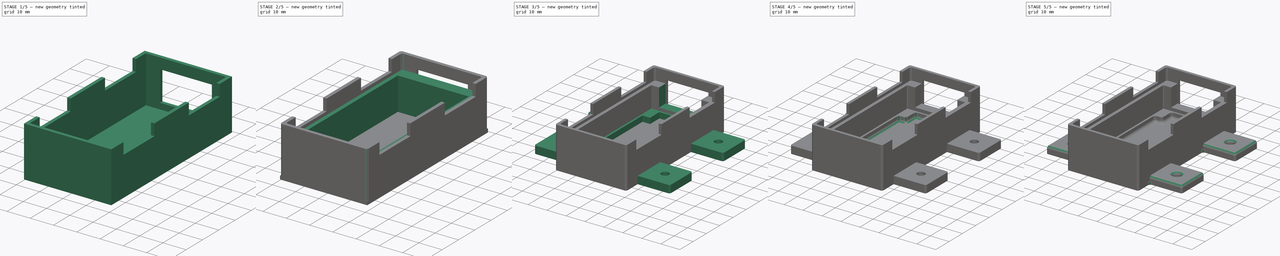
[diagram: build sequence overview — one tinted view per stage of 5, left to right]
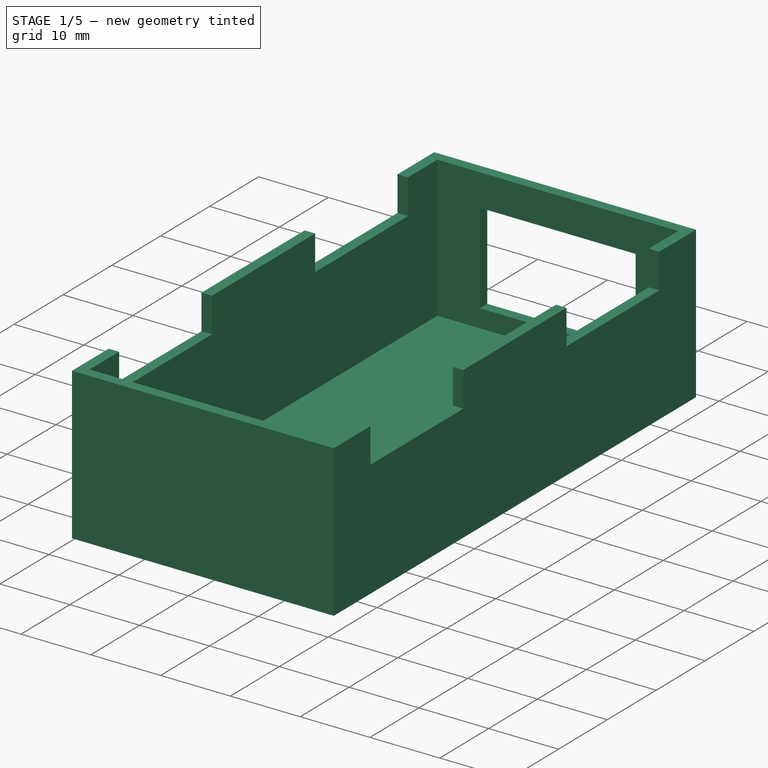
[diagram: stage 1 of 5 — iso view after this stage's code; geometry added in this stage tinted green]
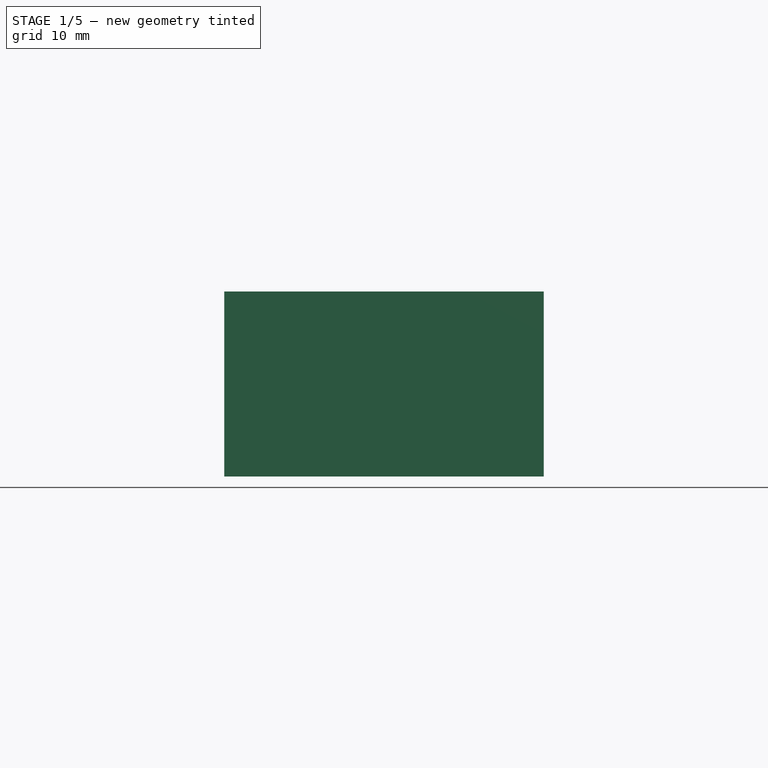
[diagram: stage 1 of 5 — front view after this stage's code; geometry added in this stage tinted green]
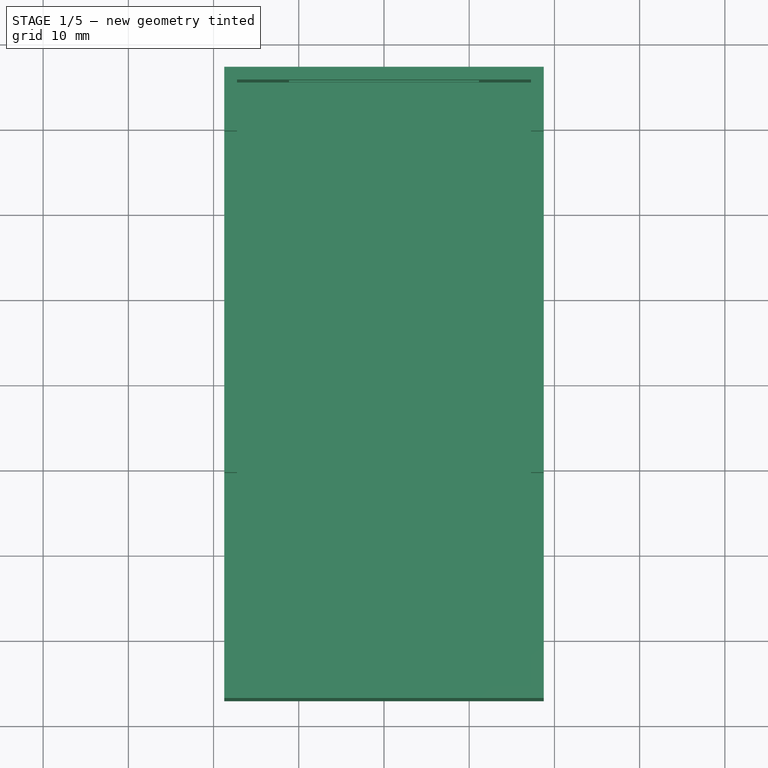
[diagram: stage 1 of 5 — top view after this stage's code; geometry added in this stage tinted green]
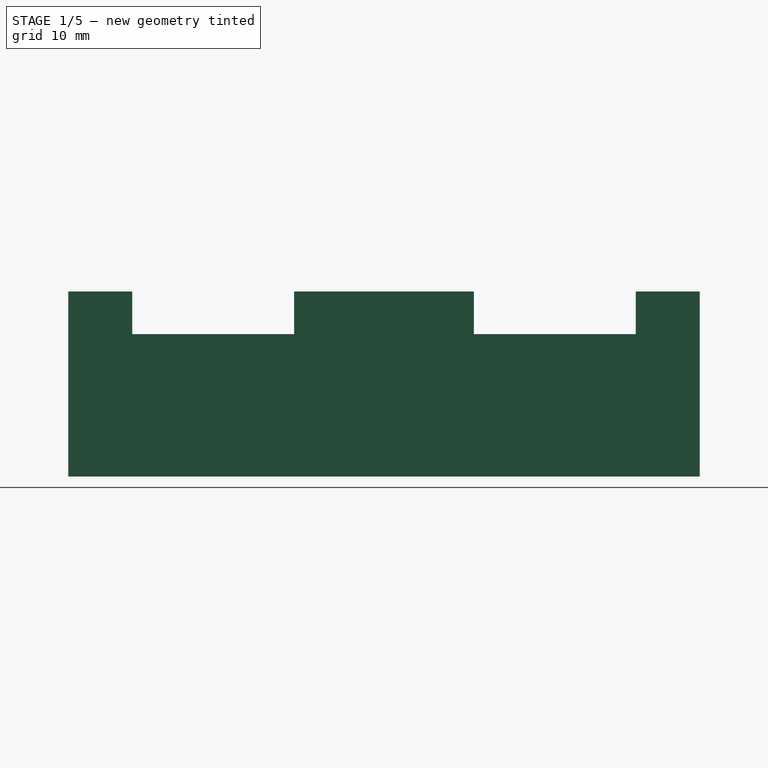
[diagram: stage 1 of 5 — right view after this stage's code; geometry added in this stage tinted green]
FCSTD DOCUMENT  (FreeCAD 0.19R24415 (Git))
Label: esp32-wled-level-shifter-enclosure
License: All rights reserved
LicenseURL: http://en.wikipedia.org/wiki/All_rights_reserved
objects: PartDesign::Fillet×11, Sketcher::SketchObject×10, PartDesign::Pad×6, PartDesign::Pocket×4, PartDesign::Body×2, Spreadsheet::Sheet×1, App::VRMLObject×1, App::Part×1
note: 54 computed .brp shape members not serialized (recipe doc carries the construction recipe); baked Part::Feature solids carry a one-line shape summary decoded from their .brp

FEATURE [App::VRMLObject] esp32_wled_level_shifter  label="esp32-wled-level-shifter"
FEATURE [App::Part] Part
  Group = -> [esp32_wled_level_shifter]
  Origin = -> Origin001
  Placement = pos=(146.5,-88.5,5.5) rot=(0,0,1;3.14159rad)
FEATURE [Sketcher::SketchObject] Sketch008
  FullyConstrained = true
  MapMode = 5
  Support = -> [XY_Plane002]
  expr: Constraints[8] = <<Params>>.BoardWidth + <<Params>>.SideMargin * 2 + <<Params>>.WallThickness * 2
  expr: Constraints[9] = <<Params>>.BoardLength + <<Params>>.ConnectorExtLength * 2
  sketch-geometry (4):
    g0: LineSegment StartX=-18.75 StartY=37.05 StartZ=0 EndX=18.75 EndY=37.05 EndZ=0
    g1: LineSegment StartX=18.75 StartY=37.05 StartZ=0 EndX=18.75 EndY=-37.05 EndZ=0
    g2: LineSegment StartX=18.75 StartY=-37.05 StartZ=0 EndX=-18.75 EndY=-37.05 EndZ=0
    g3: LineSegment StartX=-18.75 StartY=-37.05 StartZ=0 EndX=-18.75 EndY=37.05 EndZ=0
  constraints (10):
    c: Coincident(g0,g1)
    c: Coincident(g1,g2)
    c: Coincident(g2,g3)
    c: Coincident(g3,g0)
    c: Horizontal(g2)
    c: Vertical(g1)
    c: Symmetric(g0,g0,g-2)
    c: Symmetric(g0,g2,g-1)
    c: DistanceX(g0,g0) = 37.5
    c: DistanceY(g1,g1) = 74.1
FEATURE [PartDesign::Pad] Pad011
  Direction = (1,1,1)
  Length = 1.5
  Length2 = 100
  Profile = -> Sketch008
  Type = 0
  expr: Length = <<Params>>.WallThickness
FEATURE [Sketcher::SketchObject] Sketch009
  ExternalGeometry = -> [Pad011]
  FullyConstrained = true
  MapMode = 5
  Placement = pos=(0,0,1.5) rot=(0,0,1;0rad)
  Support = -> [Pad011]
  expr: Constraints[17] = <<Params>>.WallThickness
  expr: Constraints[18] = <<Params>>.WallThickness
  sketch-geometry (8):
    g0: LineSegment StartX=-18.75 StartY=37.05 StartZ=0 EndX=18.75 EndY=37.05 EndZ=0
    g1: LineSegment StartX=18.75 StartY=37.05 StartZ=0 EndX=18.75 EndY=-37.05 EndZ=0
    g2: LineSegment StartX=18.75 StartY=-37.05 StartZ=0 EndX=-18.75 EndY=-37.05 EndZ=0
    g3: LineSegment StartX=-18.75 StartY=-37.05 StartZ=0 EndX=-18.75 EndY=37.05 EndZ=0
    g4: LineSegment StartX=-17.25 StartY=35.55 StartZ=0 EndX=17.25 EndY=35.55 EndZ=0
    g5: LineSegment StartX=17.25 StartY=35.55 StartZ=0 EndX=17.25 EndY=-35.55 EndZ=0
    g6: LineSegment StartX=17.25 StartY=-35.55 StartZ=0 EndX=-17.25 EndY=-35.55 EndZ=0
    g7: LineSegment StartX=-17.25 StartY=-35.55 StartZ=0 EndX=-17.25 EndY=35.55 EndZ=0
  constraints (19):
    c: Coincident(g0,g1)
    c: Coincident(g1,g2)
    c: Coincident(g2,g3)
    c: Coincident(g3,g0)
    c: Horizontal(g0)
    c: Vertical(g1)
    c: Coincident(g0,g-3)
    c: Symmetric(g0,g2,g-1)
    c: Symmetric(g1,g2,g-2)
    c: Coincident(g4,g5)
    c: Coincident(g5,g6)
    c: Coincident(g6,g7)
    c: Coincident(g7,g4)
    c: Horizontal(g6)
    c: Vertical(g5)
    c: Symmetric(g4,g4,g-2)
    c: Symmetric(g4,g6,g-1)
    c: DistanceX(g0,g4) = 1.5
    c: DistanceY(g4,g0) = 1.5
FEATURE [PartDesign::Pad] Pad012
  BaseFeature = -> Pad011
  Direction = (1,1,1)
  Length = 20.2
  Length2 = 100
  Profile = -> Sketch009
  Type = 0
  expr: Length = <<Params>>.ElectronicsHeight + <<Params>>.BoardStandoffHeight
FEATURE [Sketcher::SketchObject] Sketch010
  ExternalGeometry = -> [Pad012]
  FullyConstrained = true
  MapMode = 5
  Placement = pos=(0,37.05,0) rot=(0,0.707107,0.707107;3.14159rad)
  Support = -> [Pad012]
  expr: Constraints[8] = <<Params>>.ConnectorWidth
  expr: Constraints[9] = <<Params>>.ConnectorHeight + 3.5mm
  expr: Constraints[10] = <<Params>>.BoardStandoffHeight + <<Params>>.BoardThickness
  sketch-geometry (4):
    g0: LineSegment StartX=-11.15 StartY=17.1 StartZ=0 EndX=11.15 EndY=17.1 EndZ=0
    g1: LineSegment StartX=11.15 StartY=17.1 StartZ=0 EndX=11.15 EndY=4.1 EndZ=0
    g2: LineSegment StartX=11.15 StartY=4.1 StartZ=0 EndX=-11.15 EndY=4.1 EndZ=0
    g3: LineSegment StartX=-11.15 StartY=4.1 StartZ=0 EndX=-11.15 EndY=17.1 EndZ=0
  constraints (11):
    c: Coincident(g0,g1)
    c: Coincident(g1,g2)
    c: Coincident(g2,g3)
    c: Coincident(g3,g0)
    c: Horizontal(g2)
    c: Vertical(g1)
    c: Vertical(g3)
    c: Symmetric(g0,g0,g-2)
    c: DistanceX(g0,g0) = 22.3
    c: DistanceY(g3,g3) = 13
    c: DistanceY(g0,g-3) = 4.6
FEATURE [PartDesign::Pocket] Pocket003
  BaseFeature = -> Pad012
  Length = 5
  Length2 = 100
  Profile = -> Sketch010
  Type = 2
FEATURE [PartDesign::Body] Body  label="bottom"
  Group = -> [Sketch,Pad,Sketch001,Pad001,Sketch002,Pocket,Sketch014,Pad014,Sketch015,Pad015,Sketch016,Pocket006,Fillet,Fillet012,Fillet013,Fillet014,Fillet015,Fillet016,Fillet017,Fillet018,Fillet019]
  Origin = -> Origin
  Tip = -> Fillet019
FEATURE [Sketcher::SketchObject] Sketch017
  ExternalGeometry = -> [Pocket003]
  FullyConstrained = true
  MapMode = 5
  Placement = pos=(-18.75,0,0) rot=(0.57735,-0.57735,-0.57735;2.0944rad)
  Support = -> [Pocket003]
  expr: Constraints[19] = <<Params>>.ScrewTabWidth + 2mm
  expr: Constraints[20] = <<Params>>.ScrewTabWidth / 2 - 1mm
  expr: Constraints[21] = <<Params>>.ScrewTabHeight + 1mm
  sketch-geometry (8):
    g0: LineSegment StartX=-29.55 StartY=21.7 StartZ=0 EndX=-10.55 EndY=21.7 EndZ=0
    g1: LineSegment StartX=-10.55 StartY=21.7 StartZ=0 EndX=-10.55 EndY=16.7 EndZ=0
    g2: LineSegment StartX=-10.55 StartY=16.7 StartZ=0 EndX=-29.55 EndY=16.7 EndZ=0
    g3: LineSegment StartX=-29.55 StartY=16.7 StartZ=0 EndX=-29.55 EndY=21.7 EndZ=0
    g4: LineSegment StartX=10.55 StartY=21.7 StartZ=0 EndX=29.55 EndY=21.7 EndZ=0
    g5: LineSegment StartX=29.55 StartY=21.7 StartZ=0 EndX=29.55 EndY=16.7 EndZ=0
    g6: LineSegment StartX=29.55 StartY=16.7 StartZ=0 EndX=10.55 EndY=16.7 EndZ=0
    g7: LineSegment StartX=10.55 StartY=16.7 StartZ=0 EndX=10.55 EndY=21.7 EndZ=0
  constraints (22):
    c: Coincident(g0,g1)
    c: Coincident(g1,g2)
    c: Coincident(g2,g3)
    c: Coincident(g3,g0)
    c: Horizontal(g0)
    c: Horizontal(g2)
    c: Vertical(g1)
    c: Vertical(g3)
    c: PointOnObject(g0,g-3)
    c: Coincident(g4,g5)
    c: Coincident(g5,g6)
    c: Coincident(g6,g7)
    c: Coincident(g7,g4)
    c: Horizontal(g4)
    c: Horizontal(g6)
    c: Vertical(g5)
    c: Equal(g4,g0)
    c: Symmetric(g4,g0,g-2)
    c: Symmetric(g1,g6,g-2)
    c: DistanceX(g0,g0) = 19
    c: DistanceX(g-3,g0) = 7.5
    c: DistanceY(g1,g1) = 5
FEATURE [PartDesign::Pocket] Pocket007
  BaseFeature = -> Pocket003
  Length = 5
  Length2 = 100
  Profile = -> Sketch017
  Type = 1
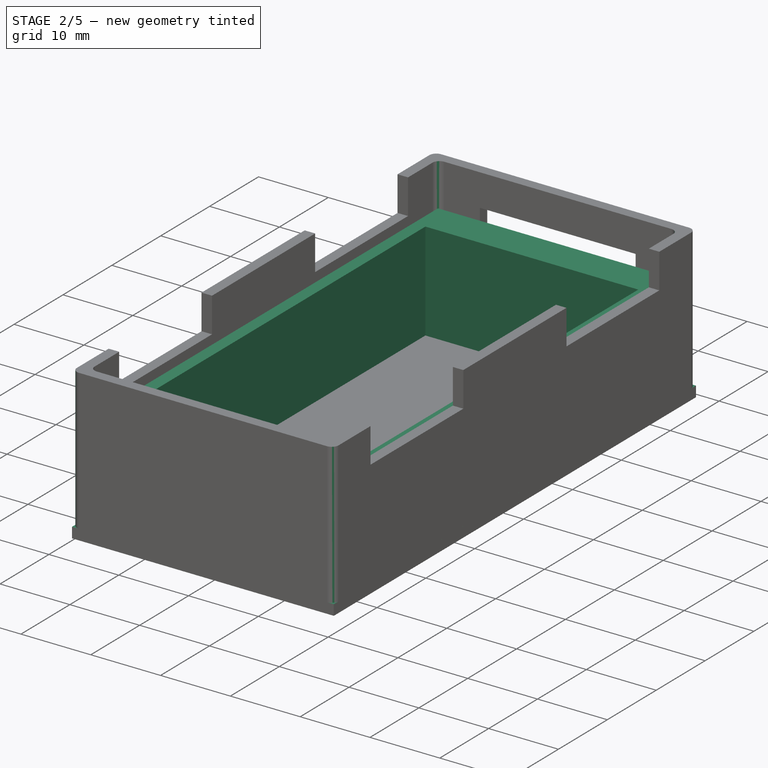
[diagram: stage 2 of 5 — iso view after this stage's code; geometry added in this stage tinted green]
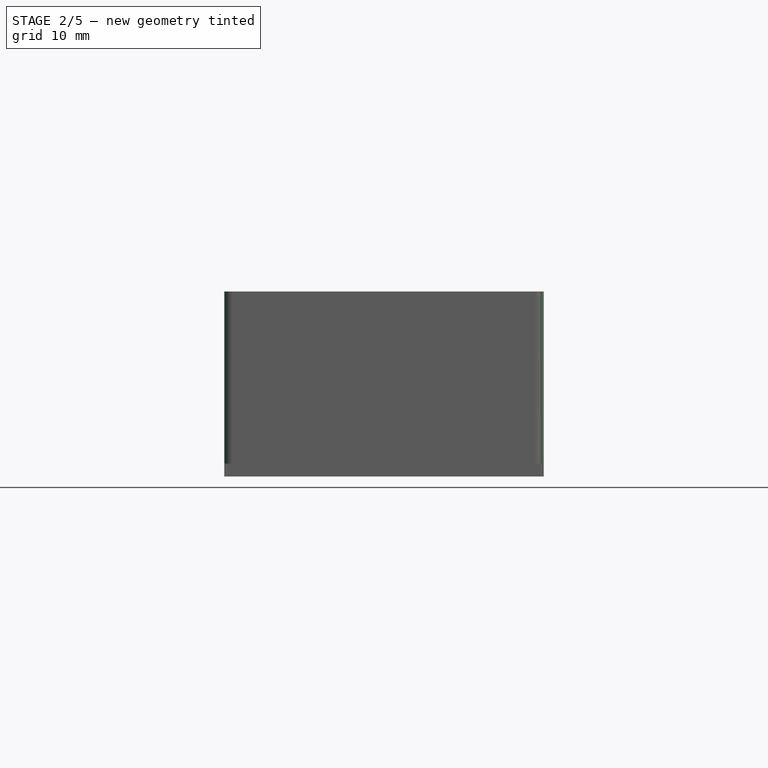
[diagram: stage 2 of 5 — front view after this stage's code; geometry added in this stage tinted green]
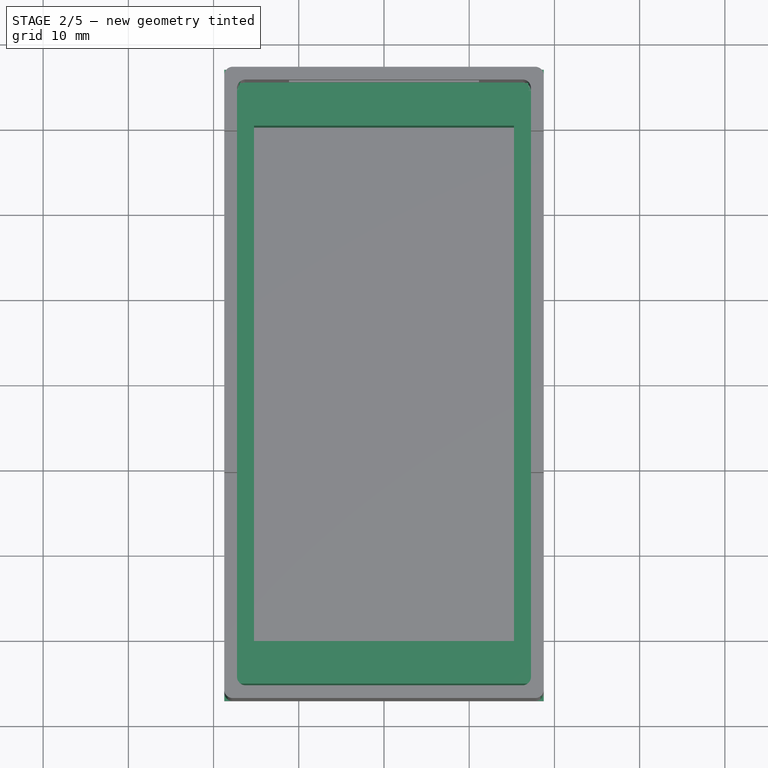
[diagram: stage 2 of 5 — top view after this stage's code; geometry added in this stage tinted green]
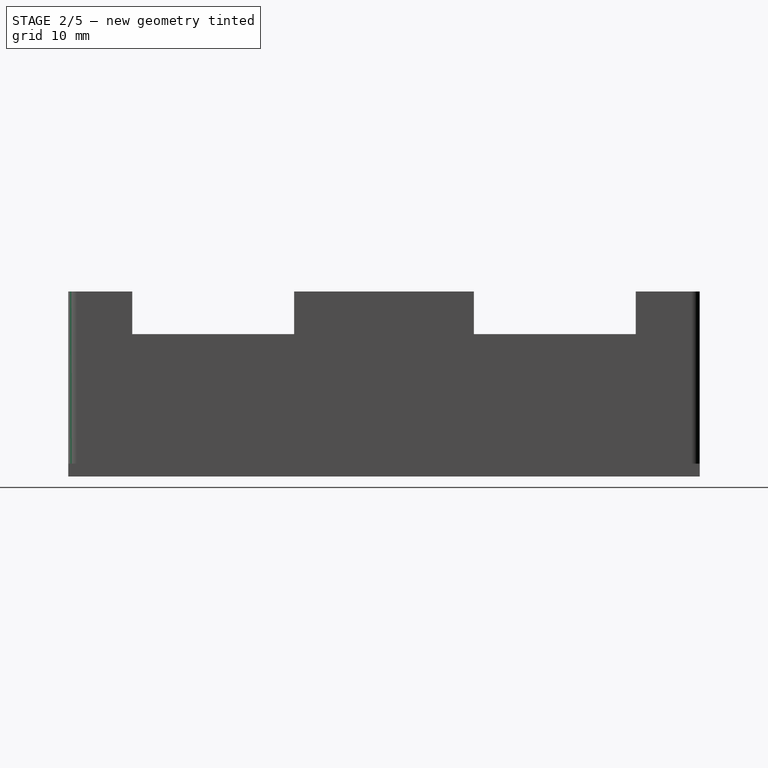
[diagram: stage 2 of 5 — right view after this stage's code; geometry added in this stage tinted green]
FEATURE [Sketcher::SketchObject] Sketch
  FullyConstrained = true
  MapMode = 5
  Support = -> [XY_Plane]
  expr: Constraints[8] = <<Params>>.BoardLength + <<Params>>.ConnectorExtLength * 2
  expr: Constraints[7] = <<Params>>.BoardWidth + <<Params>>.SideMargin * 2 + <<Params>>.WallThickness * 2
  sketch-geometry (4):
    g0: LineSegment StartX=-18.75 StartY=37.05 StartZ=0 EndX=18.75 EndY=37.05 EndZ=0
    g1: LineSegment StartX=18.75 StartY=37.05 StartZ=0 EndX=18.75 EndY=-37.05 EndZ=0
    g2: LineSegment StartX=18.75 StartY=-37.05 StartZ=0 EndX=-18.75 EndY=-37.05 EndZ=0
    g3: LineSegment StartX=-18.75 StartY=-37.05 StartZ=0 EndX=-18.75 EndY=37.05 EndZ=0
  constraints (10):
    c: Coincident(g0,g1)
    c: Coincident(g1,g2)
    c: Coincident(g2,g3)
    c: Coincident(g3,g0)
    c: Horizontal(g2)
    c: Symmetric(g0,g0,g-2)
    c: Symmetric(g0,g2,g-1)
    c: DistanceX(g0,g0) = 37.5
    c: DistanceY(g1,g1) = 74.1
    c: Vertical(g1)
FEATURE [Spreadsheet::Sheet] Spreadsheet  label="Params"
  cells = A1=Label; B1=Value; A2=BoardWidth; B2(BoardWidth)==30.5mm; A3=BoardLength; B3(BoardLength)==60.5mm; A4=WallThickness; B4(WallThickness)==1.5mm; A5=SideMargin; B5(SideMargin)==2mm; A6=ConnectorExtLength; B6(ConnectorExtLength)==6.8mm; A7=ConnectorWidth; B7(ConnectorWidth)==22.3mm; A8=ConnectorHeight; B8(ConnectorHeight)==9.5mm; A9=BoardStandoffHeight; B9(BoardStandoffHeight)==3mm; A10=BoardThickness; B10(BoardThickness)==1.6mm; A11=BoardStandoffLength; B11(BoardStandoffLength)==8mm; A12=InsertHeight; B12(InsertHeight)==5.9mm; A13=InsertHoleDiameter; B13(InsertHoleDiameter)==3.6mm; A14=InsertOuterDiameter; B14(InsertOuterDiameter)==5.6mm; A15=BoardStandoffEdgeWidth; B15(BoardStandoffEdgeWidth)==1mm; A16=BoardStandoffWidth; B16(BoardStandoffWidth)==5mm; A17=BoardFilletRadius; B17(BoardFilletRadius)==0.5mm; A18=InnerFilletRadius; B18(InnerFilletRadius)==1.5mm; A19=OuterFilletRadius; B19(OuterFilletRadius)==1mm; A20=BottomLayerFilletRadius; B20(BottomLayerFilletRadius)==0.3mm; A21=ScrewTabWidth; B21(ScrewTabWidth)==17mm; A22=ScrewTabHeight; B22(ScrewTabHeight)==4mm; A23=ScrewHoleDiameter; B23(ScrewHoleDiameter)==4mm; A24=AssemblyScrewHoleDiameter; B24(AssemblyScrewHoleDiameter)==6.5mm; A25=AssemblyScrewHolePocketDepth; B25(AssemblyScrewHolePocketDepth)==3mm; A26=LidConnectorHoleHeight; B26(LidConnectorHoleHeight)==15mm; A27=ElectronicsHeight; B27(ElectronicsHeight)==BoardThickness * 2 + 8.5mm + 2.5mm + 3mm
FEATURE [PartDesign::Pad] Pad
  Direction = (1,1,1)
  Length = 1.5
  Length2 = 100
  Profile = -> Sketch
  Type = 0
  expr: Length = <<Params>>.WallThickness
FEATURE [Sketcher::SketchObject] Sketch001
  ExternalGeometry = -> [Pad]
  FullyConstrained = true
  MapMode = 5
  Placement = pos=(0,0,1.5) rot=(0,0,1;0rad)
  Support = -> [Pad]
  expr: Constraints[17] = <<Params>>.BoardLength
  expr: Constraints[16] = <<Params>>.SideMargin - 0.3mm
  expr: Constraints[2] = <<Params>>.WallThickness + 0.3mm
  expr: Constraints[1] = <<Params>>.WallThickness + 0.3mm
  sketch-geometry (8):
    g0: LineSegment StartX=-16.95 StartY=35.25 StartZ=0 EndX=16.95 EndY=35.25 EndZ=0
    g1: LineSegment StartX=-16.95 StartY=-35.25 StartZ=0 EndX=-16.95 EndY=35.25 EndZ=0
    g2: LineSegment StartX=-16.95 StartY=-35.25 StartZ=0 EndX=16.95 EndY=-35.25 EndZ=0
    g3: LineSegment StartX=16.95 StartY=35.25 StartZ=0 EndX=16.95 EndY=-35.25 EndZ=0
    g4: LineSegment StartX=-15.25 StartY=30.25 StartZ=0 EndX=15.25 EndY=30.25 EndZ=0
    g5: LineSegment StartX=15.25 StartY=30.25 StartZ=0 EndX=15.25 EndY=-30.25 EndZ=0
    g6: LineSegment StartX=15.25 StartY=-30.25 StartZ=0 EndX=-15.25 EndY=-30.25 EndZ=0
    g7: LineSegment StartX=-15.25 StartY=-30.25 StartZ=0 EndX=-15.25 EndY=30.25 EndZ=0
  constraints (19):
    c: Coincident(g1,g0)
    c: DistanceX(g-3,g0) = 1.8
    c: DistanceY(g0,g-3) = 1.8
    c: Symmetric(g0,g0,g-2)
    c: Coincident(g2,g1)
    c: Symmetric(g2,g0,g-1)
    c: Coincident(g4,g5)
    c: Coincident(g5,g6)
    c: Coincident(g6,g7)
    c: Coincident(g7,g4)
    c: Horizontal(g6)
    c: Vertical(g7)
    c: Symmetric(g4,g5,g-1)
    c: Symmetric(g4,g4,g-2)
    c: Coincident(g3,g2)
    c: Coincident(g3,g0)
    c: DistanceX(g0,g4) = 1.7
    c: DistanceY(g5,g4) = 60.5
    c: Symmetric(g1,g0,g-1)
FEATURE [PartDesign::Pad] Pad001
  BaseFeature = -> Pad
  Direction = (1,1,1)
  Length = 14.1
  Length2 = 100
  Profile = -> Sketch001
  Type = 0
  expr: Length = <<Params>>.BoardStandoffHeight + <<Params>>.BoardThickness + <<Params>>.ConnectorHeight
FEATURE [PartDesign::Fillet] Fillet020
  Base = -> Pocket007 [Edge29,Edge12,Edge30,Edge14,Edge86,Edge89,Edge91,Edge87]
  BaseFeature = -> Pocket007
  Radius = 1
  SupportTransform = false
  expr: Radius = <<Params>>.OuterFilletRadius
FEATURE [PartDesign::Fillet] Fillet021
  Base = -> Fillet020 [Face2]
  BaseFeature = -> Fillet020
  Radius = 0.3
  SupportTransform = false
  expr: Radius = <<Params>>.BottomLayerFilletRadius
FEATURE [PartDesign::Body] Body001  label="top"
  Group = -> [Sketch008,Pad011,Sketch009,Pad012,Sketch010,Pocket003,Sketch017,Pocket007,Fillet020,Fillet021]
  Origin = -> Origin002
  Tip = -> Fillet021
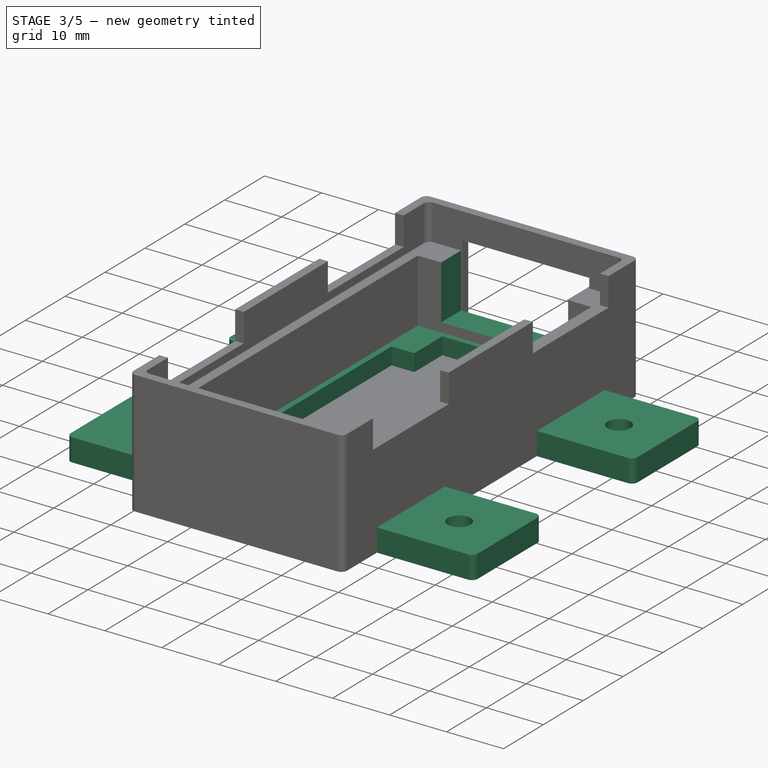
[diagram: stage 3 of 5 — iso view after this stage's code; geometry added in this stage tinted green]
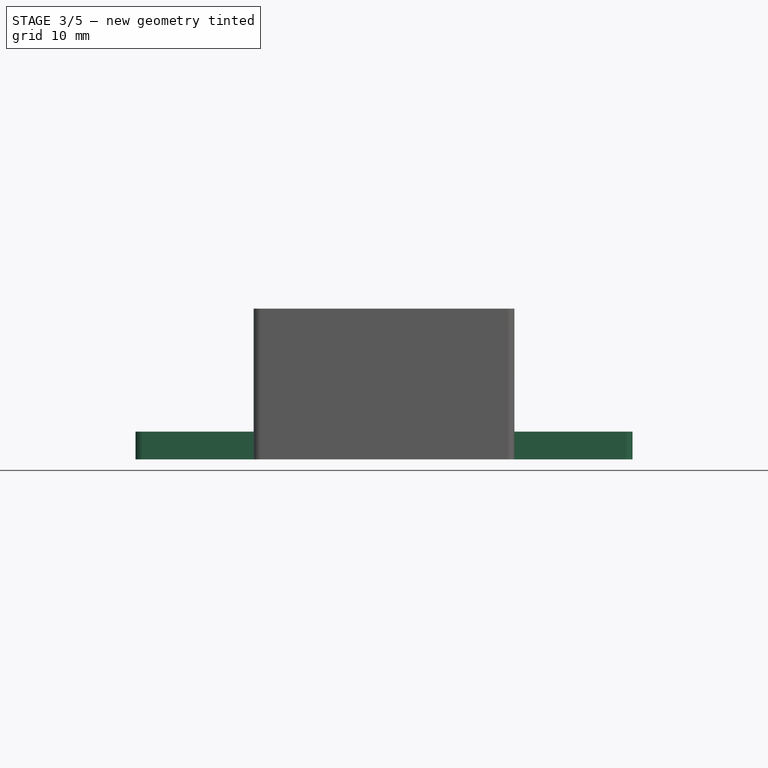
[diagram: stage 3 of 5 — front view after this stage's code; geometry added in this stage tinted green]
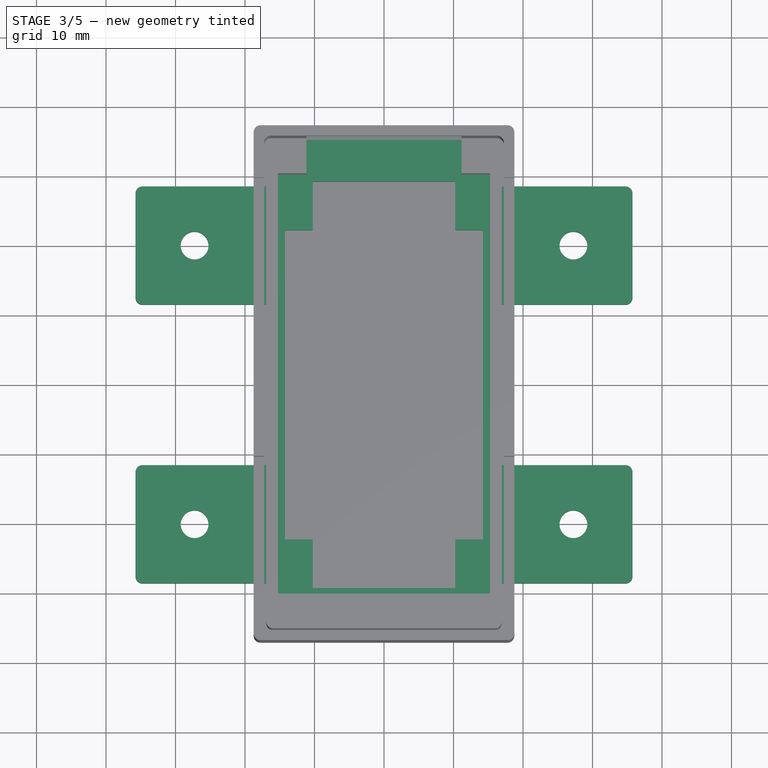
[diagram: stage 3 of 5 — top view after this stage's code; geometry added in this stage tinted green]
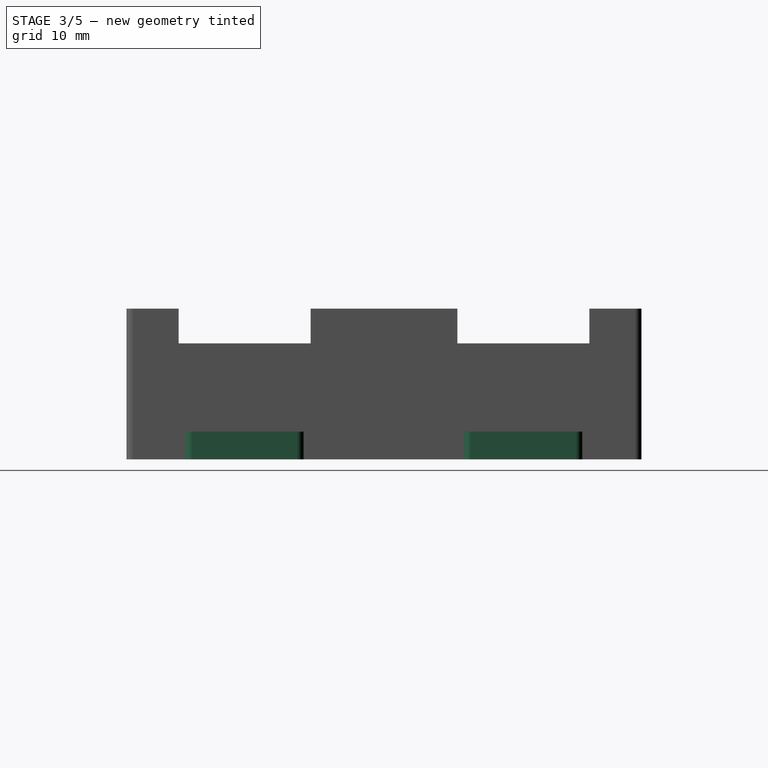
[diagram: stage 3 of 5 — right view after this stage's code; geometry added in this stage tinted green]
FEATURE [Sketcher::SketchObject] Sketch002
  ExternalGeometry = -> [Pad001]
  FullyConstrained = true
  MapMode = 5
  Placement = pos=(0,0,15.6) rot=(0,0,1;0rad)
  Support = -> [Pad001]
  expr: Constraints[10] = <<Params>>.ConnectorWidth
  sketch-geometry (4):
    g0: LineSegment StartX=-11.15 StartY=35.25 StartZ=0 EndX=11.15 EndY=35.25 EndZ=0
    g1: LineSegment StartX=11.15 StartY=35.25 StartZ=0 EndX=11.15 EndY=30.25 EndZ=0
    g2: LineSegment StartX=11.15 StartY=30.25 StartZ=0 EndX=-11.15 EndY=30.25 EndZ=0
    g3: LineSegment StartX=-11.15 StartY=30.25 StartZ=0 EndX=-11.15 EndY=35.25 EndZ=0
  constraints (11):
    c: Coincident(g0,g1)
    c: Coincident(g1,g2)
    c: Coincident(g2,g3)
    c: Coincident(g3,g0)
    c: Horizontal(g2)
    c: Vertical(g1)
    c: Vertical(g3)
    c: PointOnObject(g0,g-3)
    c: PointOnObject(g2,g-4)
    c: Symmetric(g0,g0,g-2)
    c: DistanceX(g0,g0) = 22.3
FEATURE [PartDesign::Pocket] Pocket
  BaseFeature = -> Pad001
  Length = 9.5
  Length2 = 100
  Profile = -> Sketch002
  Type = 0
  expr: Length = <<Params>>.ConnectorHeight
FEATURE [Sketcher::SketchObject] Sketch014
  ExternalGeometry = -> [Pocket]
  FullyConstrained = true
  MapMode = 5
  Placement = pos=(0,0,1.5) rot=(0,0,1;0rad)
  Support = -> [Pocket]
  expr: Constraints[35] = <<Params>>.BoardStandoffEdgeWidth
  expr: Constraints[34] = <<Params>>.BoardStandoffEdgeWidth
  expr: Constraints[33] = <<Params>>.BoardStandoffLength
  expr: Constraints[32] = <<Params>>.BoardStandoffWidth
  sketch-geometry (16):
    g0: LineSegment StartX=-15.25 StartY=30.25 StartZ=0 EndX=15.25 EndY=30.25 EndZ=0
    g1: LineSegment StartX=15.25 StartY=30.25 StartZ=0 EndX=15.25 EndY=-30.25 EndZ=0
    g2: LineSegment StartX=15.25 StartY=-30.25 StartZ=0 EndX=-15.25 EndY=-30.25 EndZ=0
    g3: LineSegment StartX=-15.25 StartY=-30.25 StartZ=0 EndX=-15.25 EndY=30.25 EndZ=0
    g4: LineSegment StartX=-10.25 StartY=22.25 StartZ=0 EndX=-10.25 EndY=29.25 EndZ=0
    g5: LineSegment StartX=-10.25 StartY=29.25 StartZ=0 EndX=10.25 EndY=29.25 EndZ=0
    g6: LineSegment StartX=10.25 StartY=29.25 StartZ=0 EndX=10.25 EndY=22.25 EndZ=0
    g7: LineSegment StartX=10.25 StartY=22.25 StartZ=0 EndX=14.25 EndY=22.25 EndZ=0
    g8: LineSegment StartX=14.25 StartY=22.25 StartZ=0 EndX=14.25 EndY=-22.25 EndZ=0
    g9: LineSegment StartX=14.25 StartY=-22.25 StartZ=0 EndX=10.25 EndY=-22.25 EndZ=0
    g10: LineSegment StartX=10.25 StartY=-22.25 StartZ=0 EndX=10.25 EndY=-29.25 EndZ=0
    g11: LineSegment StartX=10.25 StartY=-29.25 StartZ=0 EndX=-10.25 EndY=-29.25 EndZ=0
    g12: LineSegment StartX=-10.25 StartY=-29.25 StartZ=0 EndX=-10.25 EndY=-22.25 EndZ=0
    g13: LineSegment StartX=-10.25 StartY=-22.25 StartZ=0 EndX=-14.25 EndY=-22.25 EndZ=0
    g14: LineSegment StartX=-14.25 StartY=-22.25 StartZ=0 EndX=-14.25 EndY=22.25 EndZ=0
    g15: LineSegment StartX=-14.25 StartY=22.25 StartZ=0 EndX=-10.25 EndY=22.25 EndZ=0
  constraints (36):
    c: Coincident(g0,g1)
    c: Coincident(g1,g2)
    c: Coincident(g2,g3)
    c: Coincident(g3,g0)
    c: Horizontal(g0)
    c: Vertical(g1)
    c: Coincident(g0,g-3)
    c: Symmetric(g2,g0,g-1)
    c: Symmetric(g1,g2,g-2)
    c: Vertical(g4)
    c: Coincident(g4,g5)
    c: Coincident(g5,g6)
    c: Coincident(g6,g7)
    c: Horizontal(g7)
    c: Coincident(g7,g8)
    c: Coincident(g8,g9)
    c: Coincident(g9,g10)
    c: Coincident(g10,g11)
    c: Coincident(g11,g12)
    c: Coincident(g12,g13)
    c: Coincident(g13,g14)
    c: Coincident(g14,g15)
    c: Coincident(g15,g4)
    c: Symmetric(g4,g6,g-2)
    c: Symmetric(g4,g5,g-2)
    c: Symmetric(g14,g7,g-2)
    c: Symmetric(g4,g12,g-1)
    c: Symmetric(g13,g14,g-1)
    c: Symmetric(g11,g4,g-1)
    c: Symmetric(g9,g12,g-2)
    c: Symmetric(g10,g11,g-2)
    c: Symmetric(g8,g13,g-2)
    c: DistanceX(g0,g4) = 5
    c: DistanceY(g14,g0) = 8
    c: DistanceY(g4,g0) = 1
    c: DistanceX(g0,g14) = 1
FEATURE [PartDesign::Pad] Pad014
  BaseFeature = -> Pocket
  Direction = (1,1,1)
  Length = 3
  Length2 = 100
  Profile = -> Sketch014
  Type = 0
  expr: Length = <<Params>>.BoardStandoffHeight
FEATURE [Sketcher::SketchObject] Sketch015
  ExternalGeometry = -> [Pad014]
  FullyConstrained = true
  MapMode = 5
  Placement = pos=(0,0,0) rot=(1,0,0;3.14159rad)
  Support = -> [Pad014]
  expr: Constraints[50] = <<Params>>.ScrewTabWidth + <<Params>>.WallThickness + 0.3mm
  expr: Constraints[49] = <<Params>>.ScrewTabWidth / 2
  expr: Constraints[51] = <<Params>>.ScrewTabWidth
  expr: Constraints[7] = <<Params>>.WallThickness + 0.3mm
  expr: Constraints[6] = <<Params>>.WallThickness + 0.3mm
  sketch-geometry (20):
    g0: LineSegment StartX=-16.95 StartY=35.25 StartZ=0 EndX=16.95 EndY=35.25 EndZ=0
    g1: LineSegment StartX=16.95 StartY=35.25 StartZ=0 EndX=16.95 EndY=-35.25 EndZ=0
    g2: LineSegment StartX=16.95 StartY=-35.25 StartZ=0 EndX=-16.95 EndY=-35.25 EndZ=0
    g3: LineSegment StartX=-16.95 StartY=-35.25 StartZ=0 EndX=-16.95 EndY=35.25 EndZ=0
    g4: LineSegment StartX=-35.75 StartY=28.55 StartZ=0 EndX=-16.95 EndY=28.55 EndZ=0
    g5: LineSegment StartX=-16.95 StartY=28.55 StartZ=0 EndX=-16.95 EndY=11.55 EndZ=0
    g6: LineSegment StartX=-16.95 StartY=11.55 StartZ=0 EndX=-35.75 EndY=11.55 EndZ=0
    g7: LineSegment StartX=-35.75 StartY=11.55 StartZ=0 EndX=-35.75 EndY=28.55 EndZ=0
    g8: LineSegment StartX=-35.75 StartY=-11.55 StartZ=0 EndX=-16.95 EndY=-11.55 EndZ=0
    g9: LineSegment StartX=-16.95 StartY=-11.55 StartZ=0 EndX=-16.95 EndY=-28.55 EndZ=0
    g10: LineSegment StartX=-16.95 StartY=-28.55 StartZ=0 EndX=-35.75 EndY=-28.55 EndZ=0
    g11: LineSegment StartX=-35.75 StartY=-28.55 StartZ=0 EndX=-35.75 EndY=-11.55 EndZ=0
    g12: LineSegment StartX=35.75 StartY=-11.55 StartZ=0 EndX=16.95 EndY=-11.55 EndZ=0
    g13: LineSegment StartX=16.95 StartY=-11.55 StartZ=0 EndX=16.95 EndY=-28.55 EndZ=0
    g14: LineSegment StartX=16.95 StartY=-28.55 StartZ=0 EndX=35.75 EndY=-28.55 EndZ=0
    g15: LineSegment StartX=35.75 StartY=-28.55 StartZ=0 EndX=35.75 EndY=-11.55 EndZ=0
    g16: LineSegment StartX=35.75 StartY=28.55 StartZ=0 EndX=16.95 EndY=28.55 EndZ=0
    g17: LineSegment StartX=16.95 StartY=28.55 StartZ=0 EndX=16.95 EndY=11.55 EndZ=0
    g18: LineSegment StartX=16.95 StartY=11.55 StartZ=0 EndX=35.75 EndY=11.55 EndZ=0
    g19: LineSegment StartX=35.75 StartY=11.55 StartZ=0 EndX=35.75 EndY=28.55 EndZ=0
  constraints (55):
    c: Coincident(g0,g1)
    c: Coincident(g1,g2)
    c: Coincident(g2,g3)
    c: Coincident(g3,g0)
    c: Horizontal(g2)
    c: Vertical(g3)
    c: DistanceX(g-3,g0) = 1.8
    c: DistanceY(g0,g-3) = 1.8
    c: Symmetric(g0,g0,g-2)
    c: Symmetric(g0,g1,g-1)
    c: Coincident(g4,g5)
    c: Coincident(g5,g6)
    c: Coincident(g6,g7)
    c: Coincident(g7,g4)
    c: Horizontal(g4)
    c: Horizontal(g6)
    c: Vertical(g5)
    c: Vertical(g7)
    c: PointOnObject(g5,g3)
    c: Coincident(g8,g9)
    c: Coincident(g9,g10)
    c: Coincident(g10,g11)
    c: Coincident(g11,g8)
    c: Horizontal(g8)
    c: Horizontal(g10)
    c: Vertical(g9)
    c: Vertical(g11)
    c: Coincident(g12,g13)
    c: Coincident(g13,g14)
    c: Coincident(g14,g15)
    c: Coincident(g15,g12)
    c: Horizontal(g12)
    c: Horizontal(g14)
    c: Vertical(g13)
    c: Vertical(g15)
    c: Coincident(g16,g17)
    c: Coincident(g17,g18)
    c: Coincident(g18,g19)
    c: Coincident(g19,g16)
    c: Horizontal(g16)
    c: Horizontal(g18)
    c: Vertical(g17)
    c: Vertical(g19)
    c: Equal(g7,g11)
    c: Equal(g11,g15)
    c: Equal(g15,g19)
    c: Equal(g4,g16)
    c: Equal(g16,g12)
    c: Equal(g12,g8)
    c: DistanceY(g4,g-3) = 8.5
    c: DistanceX(g6,g5) = 18.8
    c: DistanceY(g7,g7) = 17
    c: Symmetric(g5,g8,g-1)
    c: Symmetric(g12,g8,g-2)
    c: Symmetric(g4,g16,g-2)
FEATURE [PartDesign::Pad] Pad015
  BaseFeature = -> Pad014
  Direction = (1,1,1)
  Length = 4
  Length2 = 100
  Profile = -> Sketch015
  Reversed = true
  Type = 0
  expr: Length = <<Params>>.ScrewTabHeight
FEATURE [Sketcher::SketchObject] Sketch016
  ExternalGeometry = -> [Pad015]
  FullyConstrained = true
  MapMode = 5
  Placement = pos=(0,0,4) rot=(0,0,1;0rad)
  Support = -> [Pad015]
  expr: Constraints[10] = <<Params>>.ScrewHoleDiameter
  expr: Constraints[2] = <<Params>>.ScrewTabWidth
  sketch-geometry (5):
    g0: LineSegment StartX=-35.75 StartY=11.55 StartZ=0 EndX=-18.75 EndY=28.55 EndZ=0
    g1: Circle CenterX=-27.25 CenterY=20.05 CenterZ=0 NormalX=0 NormalY=0 NormalZ=1 AngleXU=0 Radius=2
    g2: Circle CenterX=27.25 CenterY=20.05 CenterZ=0 NormalX=0 NormalY=0 NormalZ=1 AngleXU=0 Radius=2
    g3: Circle CenterX=27.25 CenterY=-20.05 CenterZ=0 NormalX=0 NormalY=0 NormalZ=1 AngleXU=0 Radius=2
    g4: Circle CenterX=-27.25 CenterY=-20.05 CenterZ=0 NormalX=0 NormalY=0 NormalZ=1 AngleXU=0 Radius=2
  constraints (11):
    c: Coincident(g0,g-3)
    c: PointOnObject(g0,g-4)
    c: DistanceX(g-4,g0) = 17
    c: Equal(g1,g4)
    c: Equal(g4,g3)
    c: Equal(g3,g2)
    c: Symmetric(g1,g2,g-2)
    c: Symmetric(g1,g4,g-1)
    c: Symmetric(g4,g3,g-2)
    c: Symmetric(g0,g0,g1)
    c: Diameter(g1) = 4
FEATURE [PartDesign::Pocket] Pocket006
  BaseFeature = -> Pad015
  Length = 5
  Length2 = 100
  Profile = -> Sketch016
  Type = 1
FEATURE [PartDesign::Fillet] Fillet
  Base = -> Pocket006 [Edge68,Edge65,Edge2,Edge1,Edge81,Edge49,Edge48,Edge67,Edge107,Edge100,Edge86,Edge34,Edge112,Edge117,Edge93,Edge38]
  BaseFeature = -> Pocket006
  Radius = 1
  SupportTransform = false
  expr: Radius = <<Params>>.OuterFilletRadius
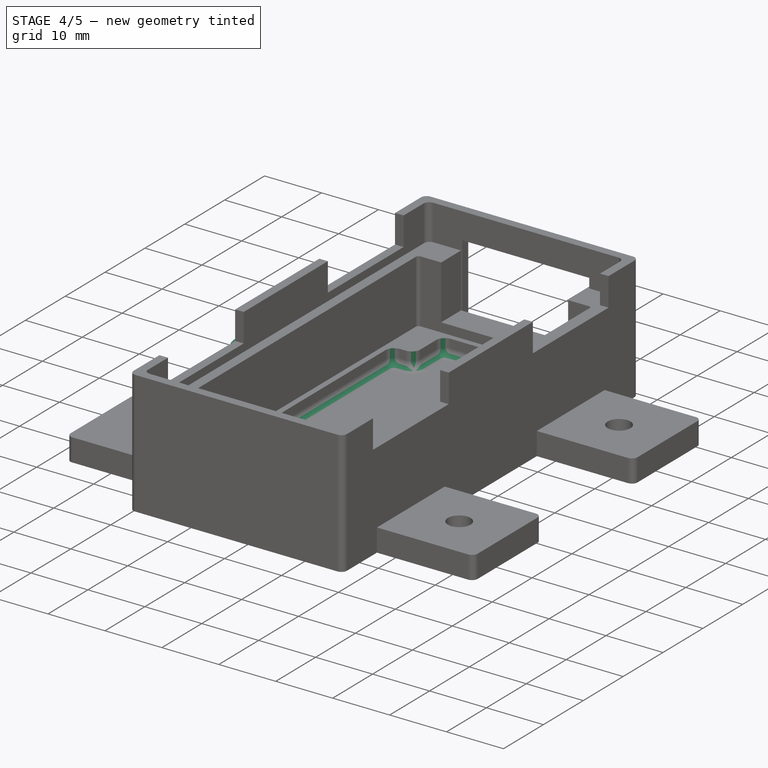
[diagram: stage 4 of 5 — iso view after this stage's code; geometry added in this stage tinted green]
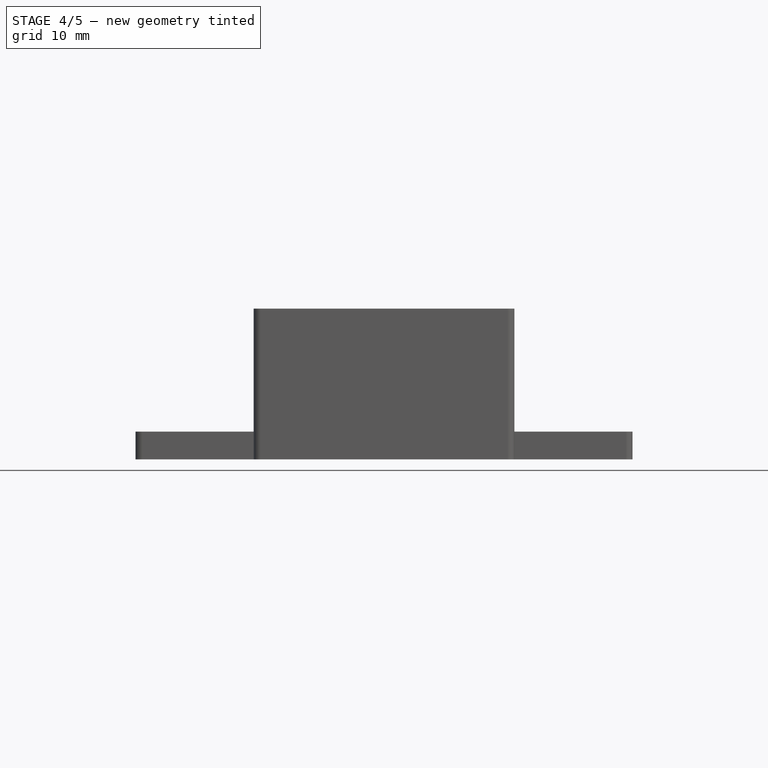
[diagram: stage 4 of 5 — front view after this stage's code; geometry added in this stage tinted green]
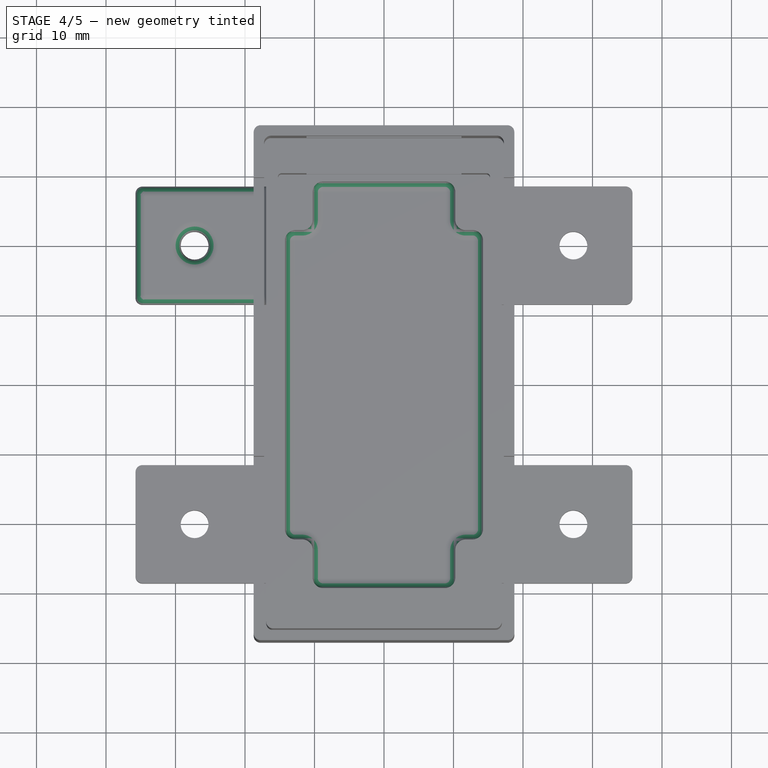
[diagram: stage 4 of 5 — top view after this stage's code; geometry added in this stage tinted green]
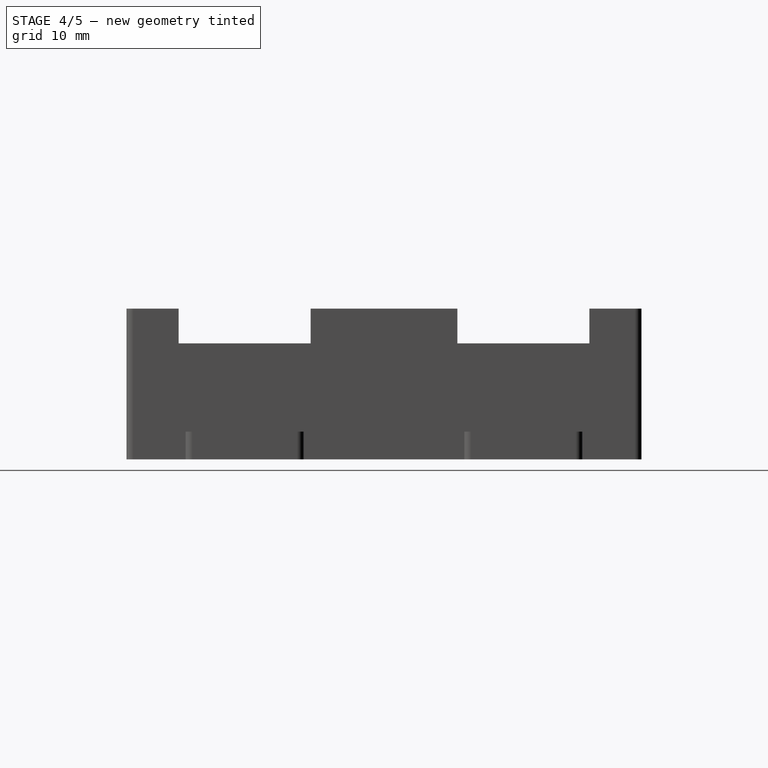
[diagram: stage 4 of 5 — right view after this stage's code; geometry added in this stage tinted green]
FEATURE [PartDesign::Fillet] Fillet012
  Base = -> Fillet [Edge193,Edge195,Edge190,Edge191]
  BaseFeature = -> Fillet
  Radius = 0.5
  SupportTransform = false
  expr: Radius = <<Params>>.BoardFilletRadius
FEATURE [PartDesign::Fillet] Fillet013
  Base = -> Fillet012 [Edge157,Edge158,Edge178,Edge176,Edge174,Edge172,Edge170,Edge168,Edge166,Edge164,Edge162,Edge160]
  BaseFeature = -> Fillet012
  Radius = 1.5
  SupportTransform = false
  expr: Radius = <<Params>>.InnerFilletRadius
FEATURE [PartDesign::Fillet] Fillet014
  Base = -> Fillet013 [Face34]
  BaseFeature = -> Fillet013
  Radius = 1.5
  SupportTransform = false
  expr: Radius = <<Params>>.InnerFilletRadius
FEATURE [PartDesign::Fillet] Fillet015
  Base = -> Fillet014 [Face79]
  BaseFeature = -> Fillet014
  Radius = 1.5
  SupportTransform = false
  expr: Radius = <<Params>>.InnerFilletRadius
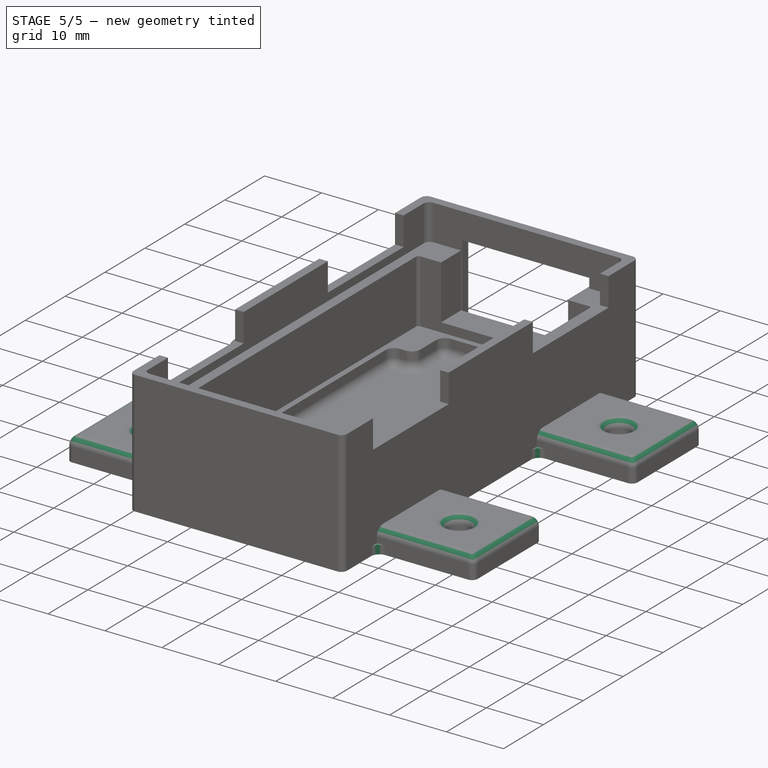
[diagram: stage 5 of 5 — iso view after this stage's code; geometry added in this stage tinted green]
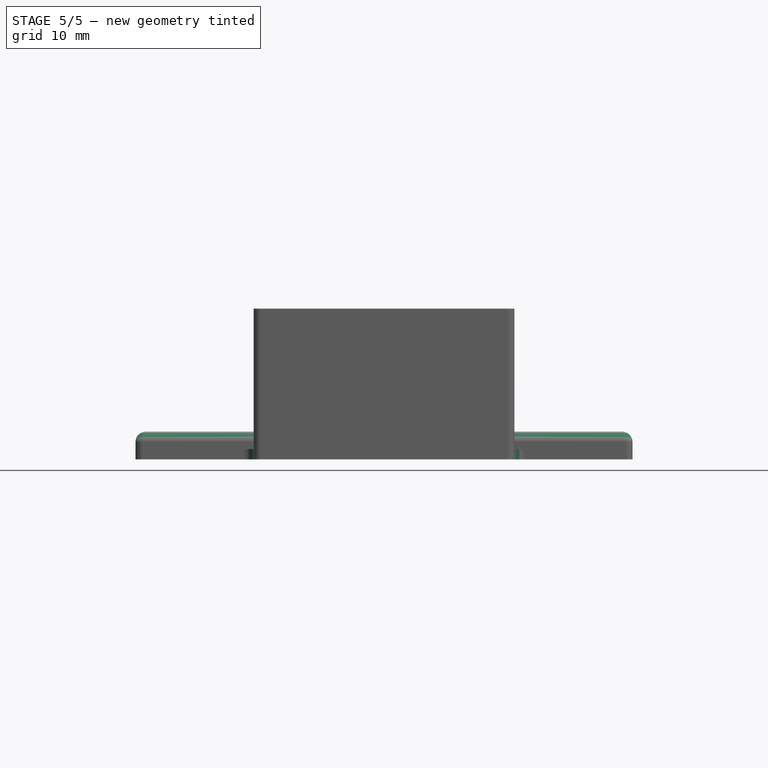
[diagram: stage 5 of 5 — front view after this stage's code; geometry added in this stage tinted green]
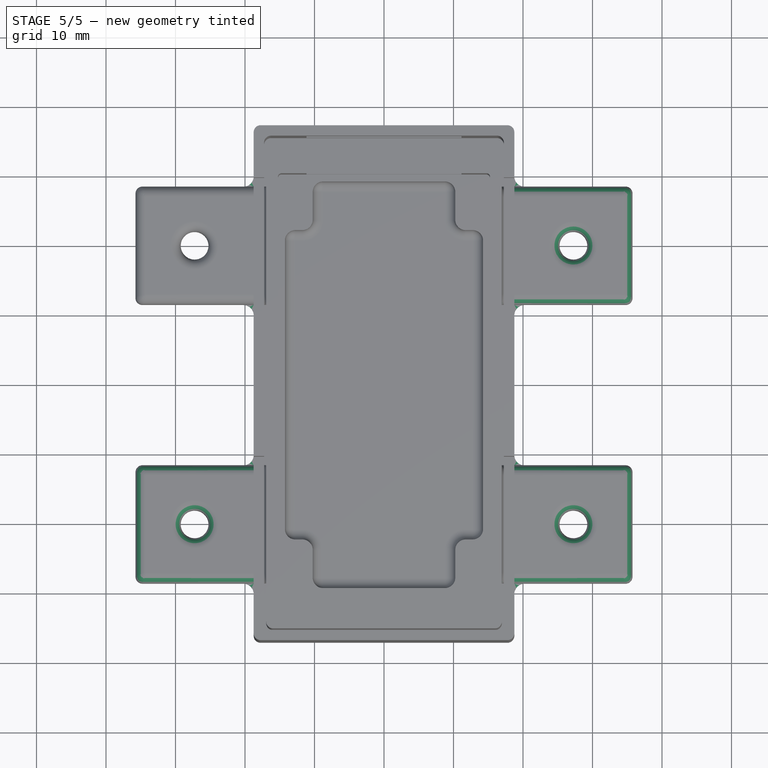
[diagram: stage 5 of 5 — top view after this stage's code; geometry added in this stage tinted green]
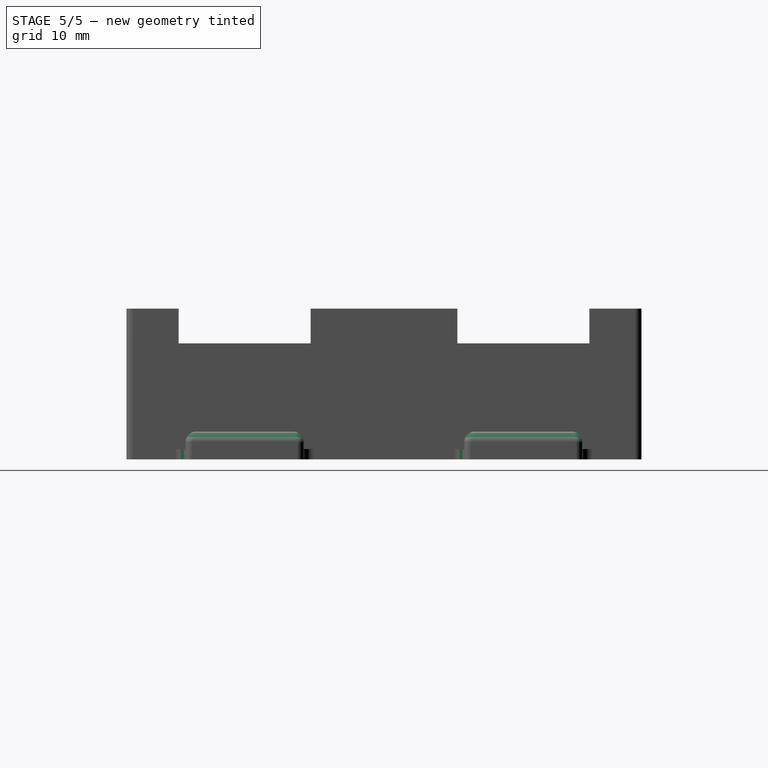
[diagram: stage 5 of 5 — right view after this stage's code; geometry added in this stage tinted green]
FEATURE [PartDesign::Fillet] Fillet016
  Base = -> Fillet015 [Face15]
  BaseFeature = -> Fillet015
  Radius = 1.5
  SupportTransform = false
  expr: Radius = <<Params>>.InnerFilletRadius
FEATURE [PartDesign::Fillet] Fillet017
  Base = -> Fillet016 [Face75]
  BaseFeature = -> Fillet016
  Radius = 1.5
  SupportTransform = false
  expr: Radius = <<Params>>.InnerFilletRadius
FEATURE [PartDesign::Fillet] Fillet018
  Base = -> Fillet017 [Face15]
  BaseFeature = -> Fillet017
  Radius = 1.5
  SupportTransform = false
  expr: Radius = <<Params>>.InnerFilletRadius
FEATURE [PartDesign::Fillet] Fillet019
  Base = -> Fillet018 [Edge180,Edge242,Edge125,Edge230,Edge62,Edge32,Edge41,Edge20]
  BaseFeature = -> Fillet018
  Radius = 1.5
  SupportTransform = false
  expr: Radius = <<Params>>.InnerFilletRadius
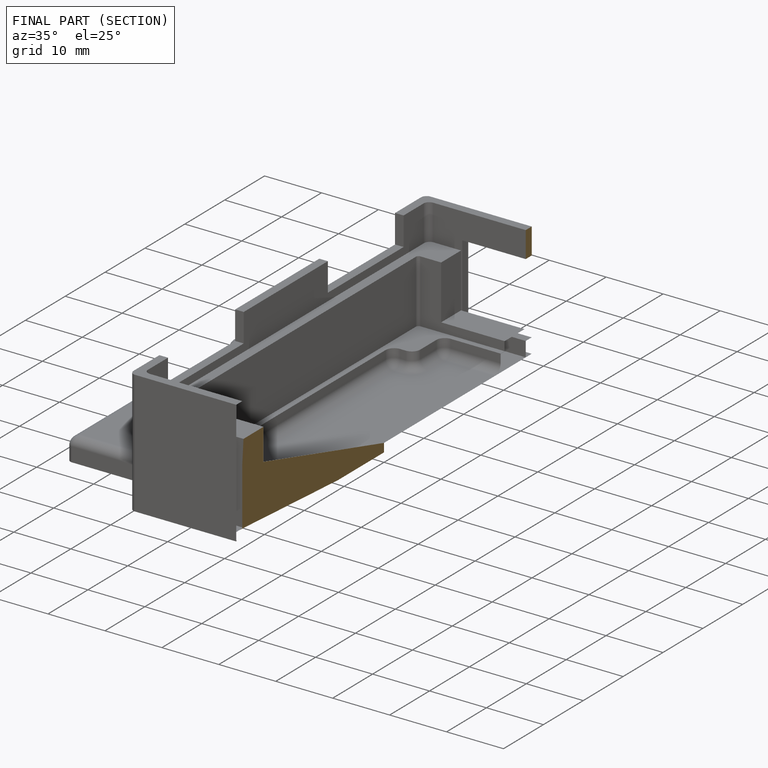
[diagram: finished part — half-section view (interior)]
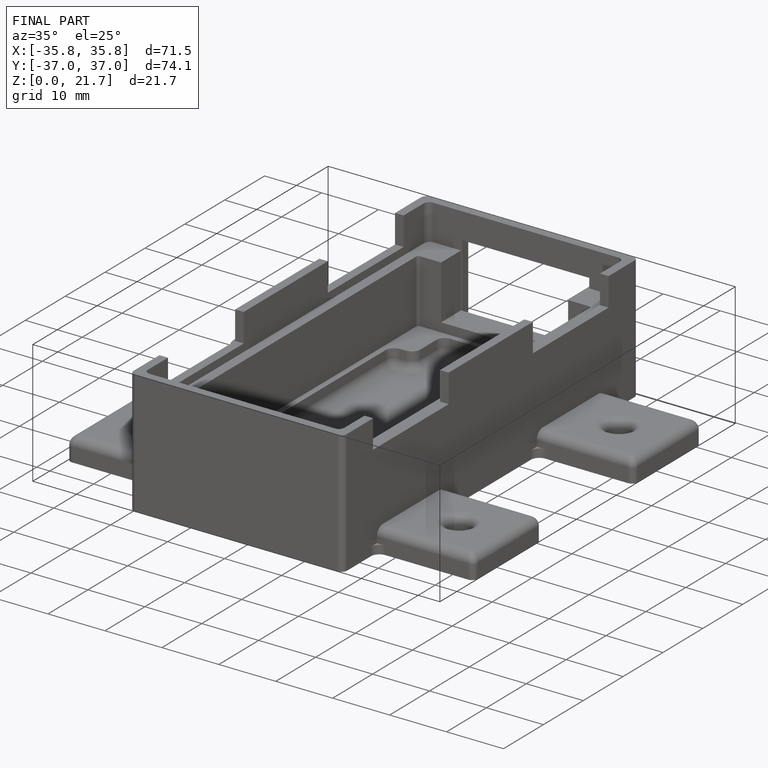
[diagram: finished part — iso view with bounding-box wireframe]
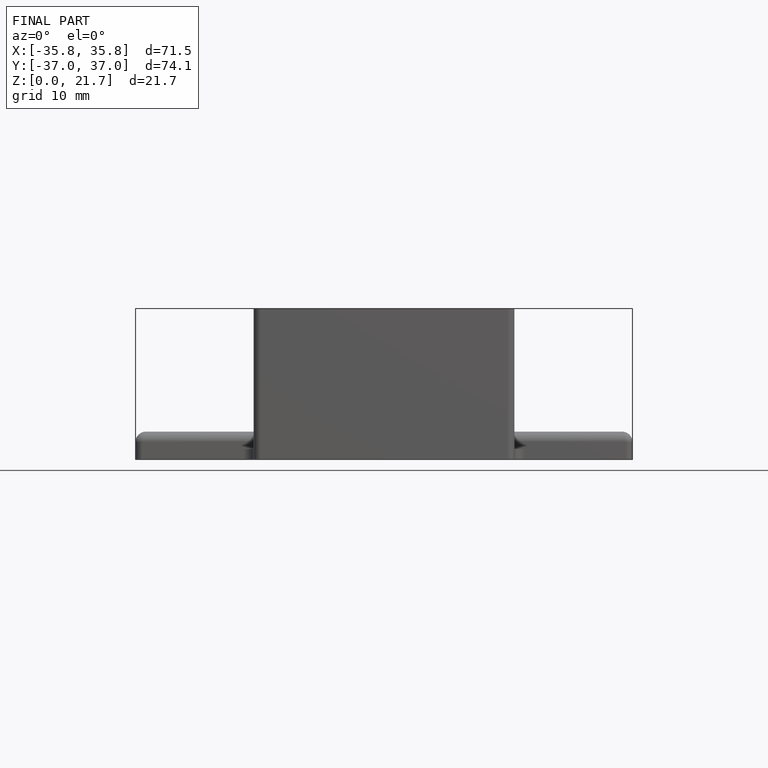
[diagram: finished part — front view with bounding-box wireframe]
